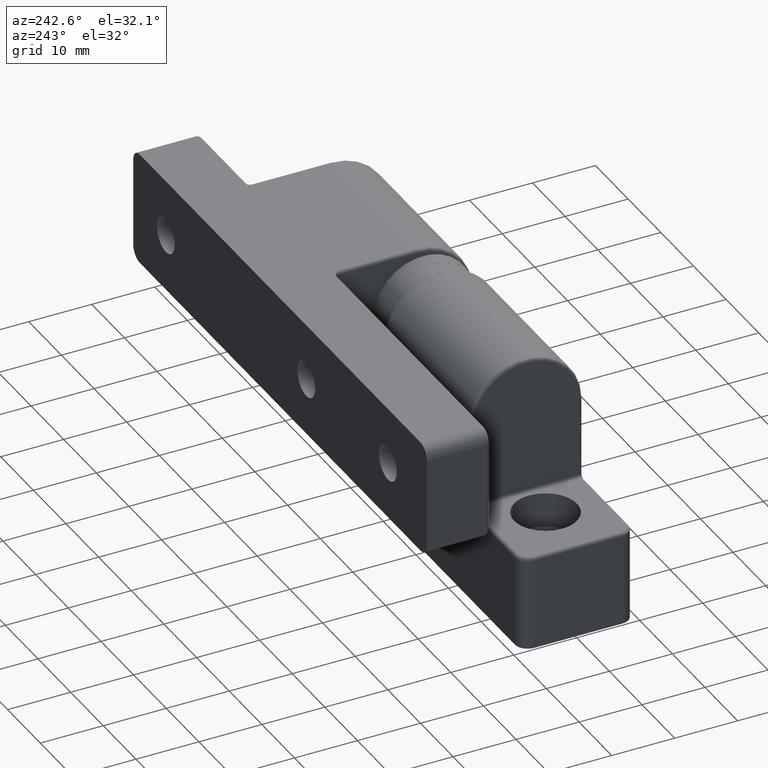
[diagram: clean part render]
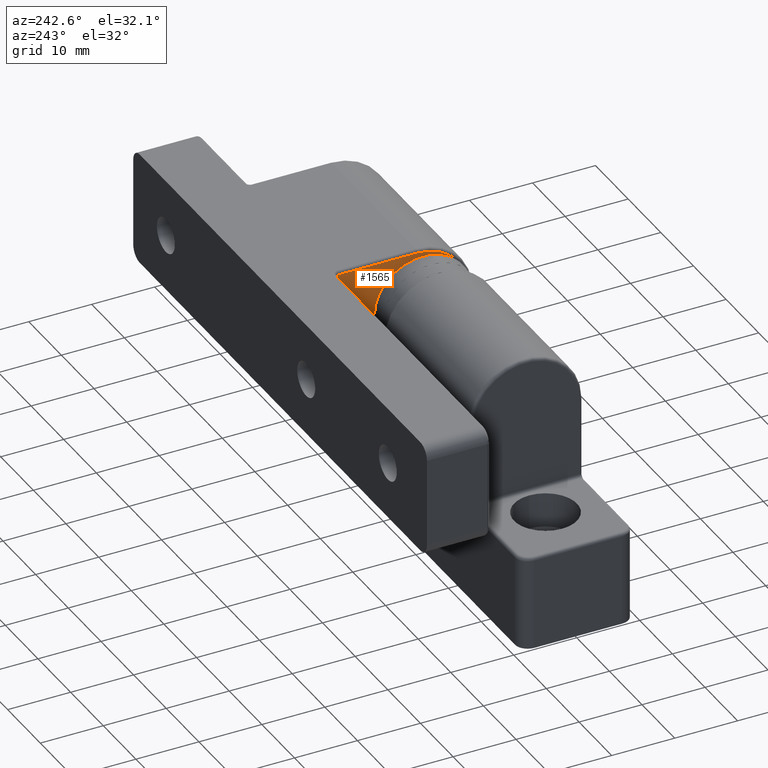
[diagram: same view with one face highlighted and labeled with its STEP entity id]
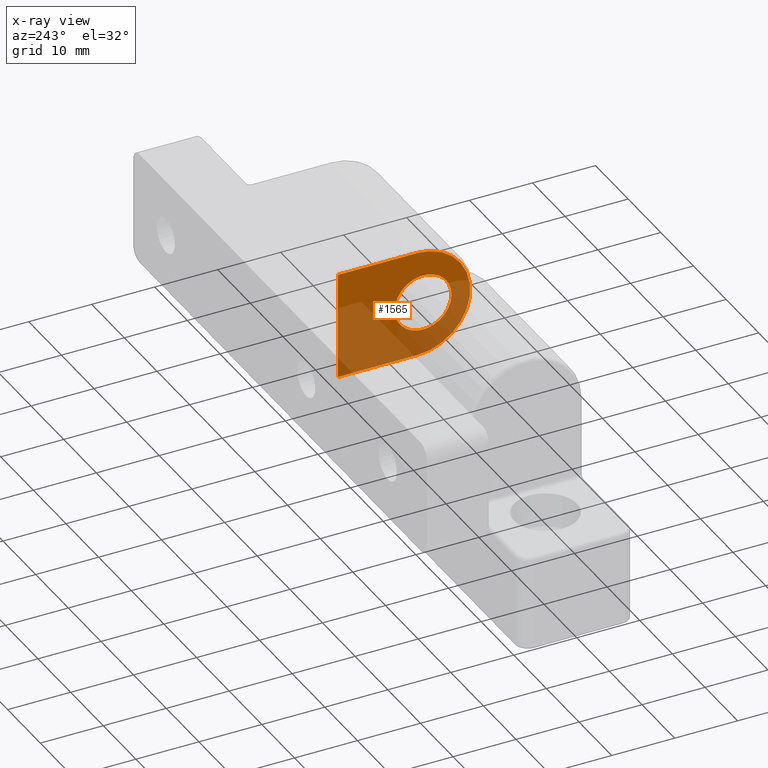
[diagram: x-ray of the same camera — body ghosted, the highlighted face saturated]
A machine part, auxiliary view. The second image highlights one B-rep face of the part: STEP entity #1565.
The next image is the same camera in x-ray: the body ghosted, the highlighted face saturated — about 54% of this face is hidden behind the body in this view.
In plain terms, the highlighted planar face has unit normal (-1, 0, -0).
Its self-contained STEP definition (entity closure, byte-faithful):
#74=FACE_BOUND('',#545,.T.);
#112=PLANE('',#1791);
#183=LINE('',#2761,#259);
#184=LINE('',#2769,#260);
#187=LINE('',#2773,#263);
#259=VECTOR('',#2277,12.5);
#260=VECTOR('',#2288,12.5);
#263=VECTOR('',#2293,17.);
#410=FACE_OUTER_BOUND('',#544,.T.);
#544=EDGE_LOOP('',(#1401,#1402,#1403,#1404));
#545=EDGE_LOOP('',(#1405));
#689=CIRCLE('',#1782,8.5);
#693=CIRCLE('',#1792,4.5);
#813=VERTEX_POINT('',#2724);
#815=VERTEX_POINT('',#2729);
#823=VERTEX_POINT('',#2759);
#825=VERTEX_POINT('',#2764);
#829=VERTEX_POINT('',#2786);
#1017=EDGE_CURVE('',#823,#815,#183,.T.);
#1019=EDGE_CURVE('',#825,#823,#689,.T.);
#1021=EDGE_CURVE('',#813,#825,#184,.T.);
#1024=EDGE_CURVE('',#815,#813,#187,.T.);
#1030=EDGE_CURVE('',#829,#829,#693,.T.);
#1401=ORIENTED_EDGE('',*,*,#1017,.F.);
#1402=ORIENTED_EDGE('',*,*,#1019,.F.);
#1403=ORIENTED_EDGE('',*,*,#1021,.F.);
#1404=ORIENTED_EDGE('',*,*,#1024,.F.);
#1405=ORIENTED_EDGE('',*,*,#1030,.T.);
#1565=ADVANCED_FACE('',(#410,#74),#112,.T.);
#1782=AXIS2_PLACEMENT_3D('',#2766,#2282,#2283);
#1791=AXIS2_PLACEMENT_3D('',#2785,#2307,#2308);
#1792=AXIS2_PLACEMENT_3D('',#2787,#2309,#2310);
#2277=DIRECTION('',(0.,0.,-1.));
#2282=DIRECTION('center_axis',(-1.,0.,0.));
#2283=DIRECTION('ref_axis',(0.,-8.93433932504306E-19,1.));
#2288=DIRECTION('',(0.,0.,1.));
#2293=DIRECTION('',(0.,-1.,0.));
#2307=DIRECTION('center_axis',(1.,0.,0.));
#2308=DIRECTION('ref_axis',(0.,0.,-1.));
#2309=DIRECTION('center_axis',(-1.,0.,0.));
#2310=DIRECTION('ref_axis',(0.,0.,-1.));
#2724=CARTESIAN_POINT('',(-2.5,-8.5,10.5));
#2729=CARTESIAN_POINT('',(-2.5,8.5,10.5));
#2759=CARTESIAN_POINT('',(-2.5,8.5,23.));
#2761=CARTESIAN_POINT('',(-2.5,8.5,9.34144852681456));
#2764=CARTESIAN_POINT('',(-2.5,-8.5,23.));
#2766=CARTESIAN_POINT('Origin',(-2.5,0.,23.));
#2769=CARTESIAN_POINT('',(-2.5,-8.5,9.34144852681456));
#2773=CARTESIAN_POINT('',(-2.5,2.55396882394919E-16,10.5));
#2785=CARTESIAN_POINT('Origin',(-2.5,5.10793764789839E-16,18.6828970536291));
#2786=CARTESIAN_POINT('',(-2.5,5.51091059616309E-16,28.5));
#2787=CARTESIAN_POINT('Origin',(-2.5,0.,24.));